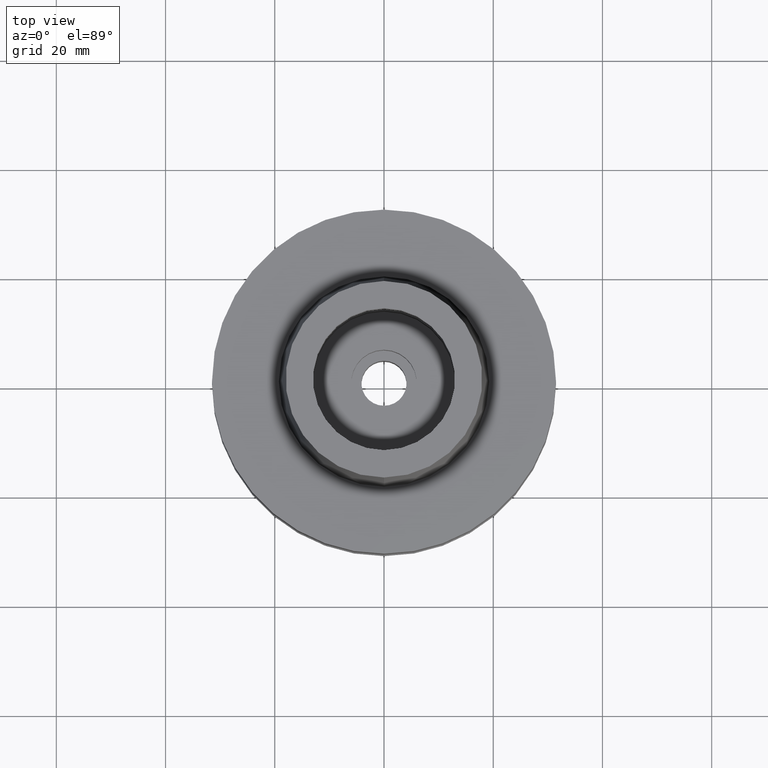
[diagram: clean part render]
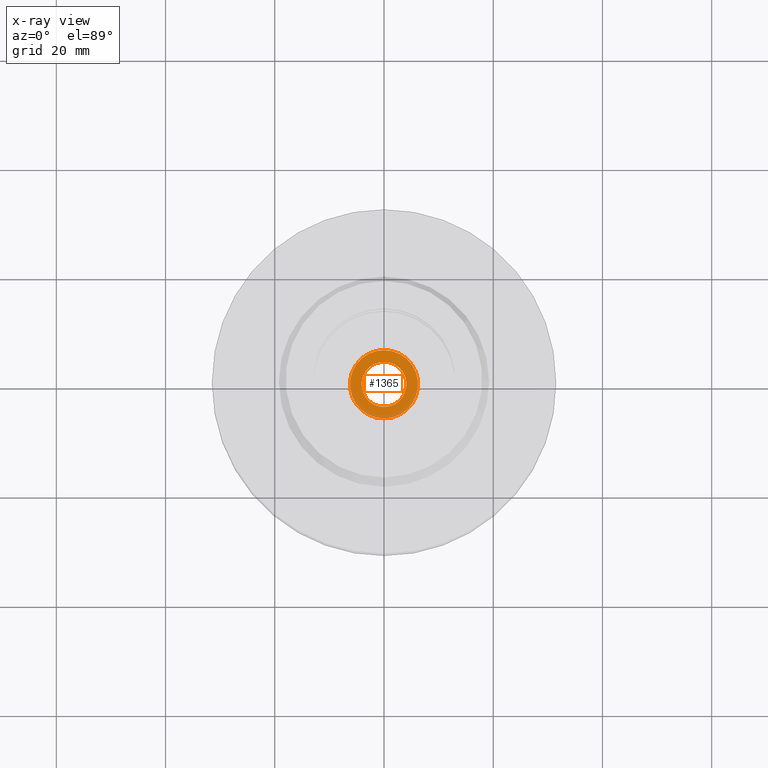
[diagram: x-ray — body ghosted, one internal face saturated and labeled with its STEP entity id]
A machine part, top view, then the same camera in x-ray: the body is ghosted and one INTERNAL B-rep face — a face not visible from any outside direction — is saturated and labeled: STEP entity #1365.
In plain terms, the highlighted planar face has unit normal (0, 0, -1).
Its self-contained STEP definition (entity closure, byte-faithful):
#490=CARTESIAN_POINT('',(0.E0,0.E0,-2.9E1));
#491=DIRECTION('',(0.E0,0.E0,1.E0));
#492=DIRECTION('',(0.E0,-1.E0,0.E0));
#493=AXIS2_PLACEMENT_3D('',#490,#491,#492);
#498=CARTESIAN_POINT('',(0.E0,0.E0,-2.9E1));
#499=DIRECTION('',(0.E0,0.E0,1.E0));
#500=DIRECTION('',(0.E0,1.E0,0.E0));
#501=AXIS2_PLACEMENT_3D('',#498,#499,#500);
#506=CARTESIAN_POINT('',(0.E0,0.E0,-2.9E1));
#507=DIRECTION('',(0.E0,0.E0,-1.E0));
#508=DIRECTION('',(0.E0,-1.E0,0.E0));
#509=AXIS2_PLACEMENT_3D('',#506,#507,#508);
#514=CARTESIAN_POINT('',(0.E0,0.E0,-2.9E1));
#515=DIRECTION('',(0.E0,0.E0,-1.E0));
#516=DIRECTION('',(0.E0,1.E0,0.E0));
#517=AXIS2_PLACEMENT_3D('',#514,#515,#516);
#824=CARTESIAN_POINT('',(0.E0,4.125E0,-2.9E1));
#825=VERTEX_POINT('',#824);
#826=CARTESIAN_POINT('',(0.E0,-4.125E0,-2.9E1));
#827=VERTEX_POINT('',#826);
#828=CARTESIAN_POINT('',(0.E0,-6.25E0,-2.9E1));
#829=CARTESIAN_POINT('',(0.E0,6.25E0,-2.9E1));
#830=VERTEX_POINT('',#828);
#831=VERTEX_POINT('',#829);
#1350=CARTESIAN_POINT('',(0.E0,0.E0,-2.9E1));
#1351=DIRECTION('',(0.E0,0.E0,-1.E0));
#1352=DIRECTION('',(0.E0,-1.E0,0.E0));
#1353=AXIS2_PLACEMENT_3D('',#1350,#1351,#1352);
#1354=PLANE('',#1353);
#1355=ORIENTED_EDGE('',*,*,#1343,.T.);
#1356=ORIENTED_EDGE('',*,*,#1332,.T.);
#1357=EDGE_LOOP('',(#1355,#1356));
#1358=FACE_OUTER_BOUND('',#1357,.F.);
#1360=ORIENTED_EDGE('',*,*,#1359,.T.);
#1362=ORIENTED_EDGE('',*,*,#1361,.T.);
#1363=EDGE_LOOP('',(#1360,#1362));
#1364=FACE_BOUND('',#1363,.F.);
#494=CIRCLE('',#493,6.25E0);
#502=CIRCLE('',#501,6.25E0);
#510=CIRCLE('',#509,4.125E0);
#518=CIRCLE('',#517,4.125E0);
#1332=EDGE_CURVE('',#831,#830,#502,.T.);
#1343=EDGE_CURVE('',#830,#831,#494,.T.);
#1359=EDGE_CURVE('',#827,#825,#510,.T.);
#1361=EDGE_CURVE('',#825,#827,#518,.T.);
#1365=ADVANCED_FACE('',(#1358,#1364),#1354,.T.);